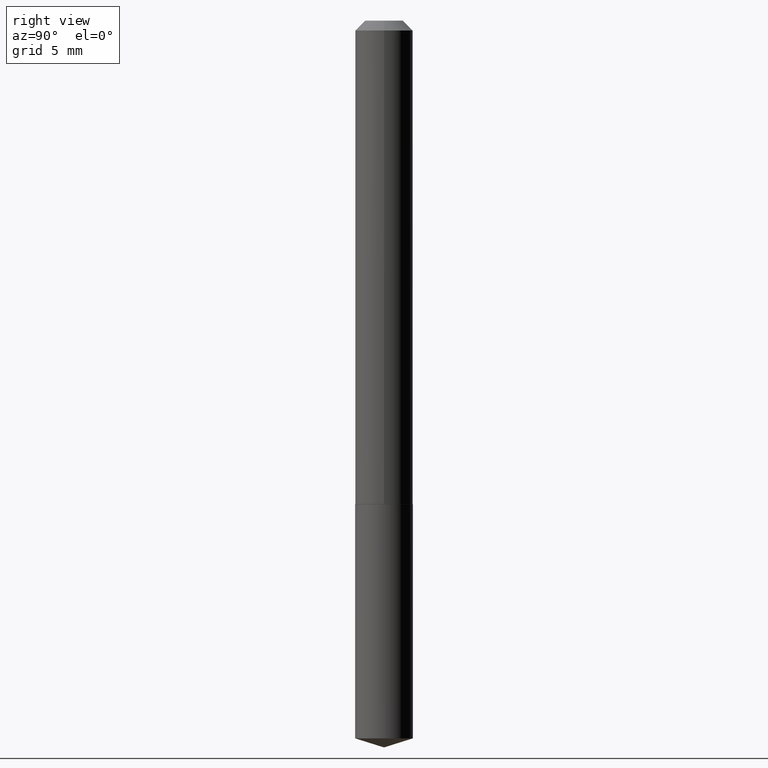
[diagram: clean part render]
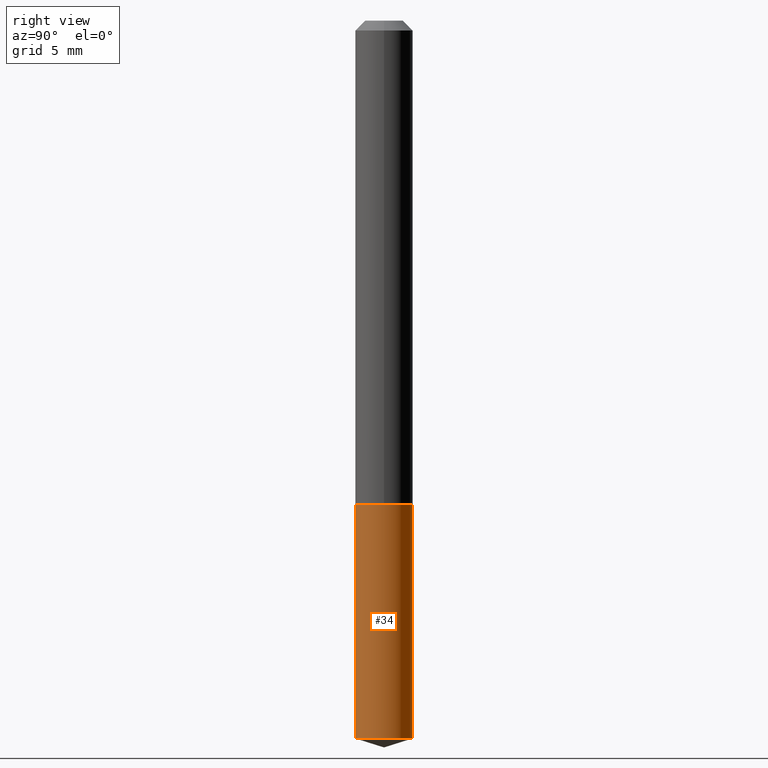
[diagram: same view with one face highlighted and labeled with its STEP entity id]
A machine part, right view. The second image highlights one B-rep face of the part: STEP entity #34.
In plain terms, the highlighted cylindrical surface (edge-blend (fillet) strip) has radius 2.3 mm, axis along (-0, 0, 1).
Its self-contained STEP definition (entity closure, byte-faithful):
#12 = AXIS2_PLACEMENT_3D ( 'NONE', #263, #208, #207 ) ;
#16 = EDGE_CURVE ( 'NONE', #340, #366, #272, .T. ) ;
#29 = CARTESIAN_POINT ( 'NONE',  ( 6.433964472308258789E-16, 0.09054999999999470417, -1.519700000000000495 ) ) ;
#34 = ADVANCED_FACE ( 'NONE', ( #346 ), #119, .T. ) ;
#53 = CARTESIAN_POINT ( 'NONE',  ( -6.323072704644543931E-16, -0.09055000000000532068, -1.519699999999999829 ) ) ;
#58 = DIRECTION ( 'NONE',  ( -2.432731830762379629E-29, 3.509721412592153455E-15, 1.000000000000000000 ) ) ;
#65 = EDGE_CURVE ( 'NONE', #136, #366, #265, .T. ) ;
#70 = CIRCLE ( 'NONE', #248, 0.09055000000000001936 ) ;
#74 = ORIENTED_EDGE ( 'NONE', *, *, #159, .T. ) ;
#90 = DIRECTION ( 'NONE',  ( -2.432731830762379629E-29, 3.509721412592153849E-15, 1.000000000000000000 ) ) ;
#93 = CARTESIAN_POINT ( 'NONE',  ( 3.716378944759552193E-29, -5.306004190639928573E-15, -1.519700000000000273 ) ) ;
#98 = DIRECTION ( 'NONE',  ( -6.982962677686266711E-15, -1.000000000000000000, 3.016949744521549049E-15 ) ) ;
#108 = EDGE_CURVE ( 'NONE', #305, #340, #261, .T. ) ;
#119 = CYLINDRICAL_SURFACE ( 'NONE', #12, 0.09055000000000000548 ) ;
#124 = DIRECTION ( 'NONE',  ( -2.432731830762379629E-29, 3.509721412592153455E-15, 1.000000000000000000 ) ) ;
#136 = VERTEX_POINT ( 'NONE', #287 ) ;
#149 = CARTESIAN_POINT ( 'NONE',  ( 5.505044280534305180E-29, -7.886525787614573716E-15, -2.254949694667009119 ) ) ;
#154 = DIRECTION ( 'NONE',  ( -2.432731830762379629E-29, 3.509721412592153849E-15, 1.000000000000000000 ) ) ;
#159 = EDGE_CURVE ( 'NONE', #305, #136, #70, .T. ) ;
#166 = ORIENTED_EDGE ( 'NONE', *, *, #16, .F. ) ;
#207 = DIRECTION ( 'NONE',  ( -6.982962677686266711E-15, -1.000000000000000000, 3.016949744521549444E-15 ) ) ;
#208 = DIRECTION ( 'NONE',  ( -2.432731830762379629E-29, 3.509721412592153849E-15, 1.000000000000000000 ) ) ;
#232 = CARTESIAN_POINT ( 'NONE',  ( -6.323072704644543931E-16, -0.09055000000000532068, -1.519699999999999829 ) ) ;
#233 = CARTESIAN_POINT ( 'NONE',  ( 6.433964472308077351E-16, 0.09054999999999470417, -1.519700000000000495 ) ) ;
#248 = AXIS2_PLACEMENT_3D ( 'NONE', #149, #90, #98 ) ;
#250 = ORIENTED_EDGE ( 'NONE', *, *, #108, .F. ) ;
#261 = LINE ( 'NONE', #53, #348 ) ;
#263 = CARTESIAN_POINT ( 'NONE',  ( 3.716378944759552193E-29, -5.306004190639928573E-15, -1.519700000000000273 ) ) ;
#265 = LINE ( 'NONE', #233, #387 ) ;
#272 = CIRCLE ( 'NONE', #275, 0.09055000000000000548 ) ;
#275 = AXIS2_PLACEMENT_3D ( 'NONE', #93, #154, #293 ) ;
#287 = CARTESIAN_POINT ( 'NONE',  ( 6.433964472308259775E-16, 0.09054999999999215066, -2.254949694667009563 ) ) ;
#293 = DIRECTION ( 'NONE',  ( -6.982962677686266711E-15, -1.000000000000000000, 3.016949744521549444E-15 ) ) ;
#305 = VERTEX_POINT ( 'NONE', #323 ) ;
#314 = ORIENTED_EDGE ( 'NONE', *, *, #65, .T. ) ;
#323 = CARTESIAN_POINT ( 'NONE',  ( -6.323072704644365451E-16, -0.09055000000000791582, -2.254949694667009119 ) ) ;
#340 = VERTEX_POINT ( 'NONE', #232 ) ;
#346 = FACE_OUTER_BOUND ( 'NONE', #368, .T. ) ;
#348 = VECTOR ( 'NONE', #124, 39.37007874015748143 ) ;
#366 = VERTEX_POINT ( 'NONE', #29 ) ;
#368 = EDGE_LOOP ( 'NONE', ( #74, #314, #166, #250 ) ) ;
#387 = VECTOR ( 'NONE', #58, 39.37007874015748143 ) ;